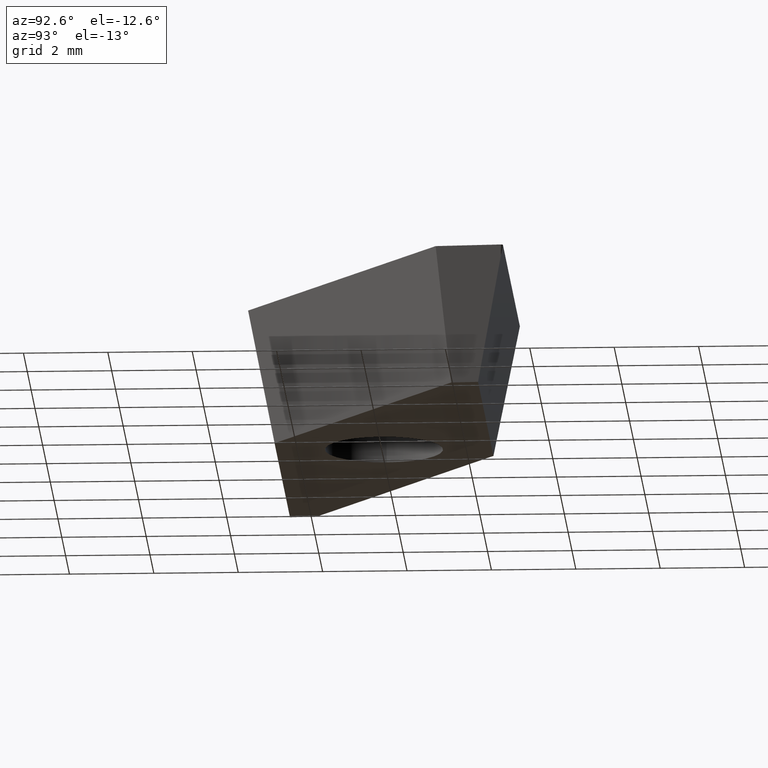
[diagram: clean part render]
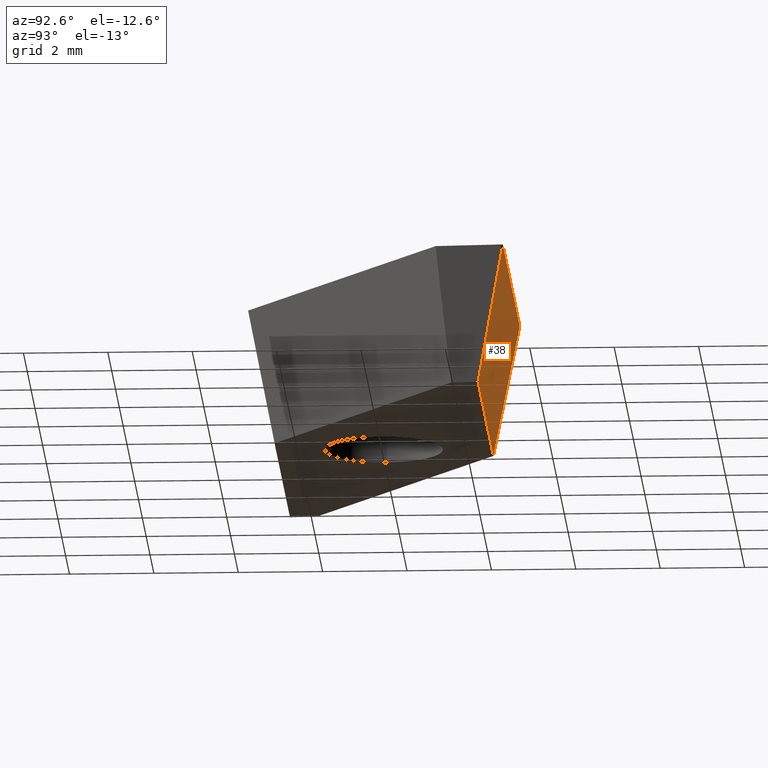
[diagram: same view with one face highlighted and labeled with its STEP entity id]
A machine part, auxiliary view. The second image highlights one B-rep face of the part: STEP entity #38.
In plain terms, the highlighted planar face has unit normal (-0, 0.9816, -0.1908).
Its self-contained STEP definition (entity closure, byte-faithful):
#3 = FACE_OUTER_BOUND ( 'NONE', #160, .T. ) ;
#20 = VECTOR ( 'NONE', #211, 1000.000000000000100 ) ;
#22 = LINE ( 'NONE', #298, #24 ) ;
#24 = VECTOR ( 'NONE', #306, 1000.000000000000100 ) ;
#37 = CARTESIAN_POINT ( 'NONE',  ( -1.001073654690764600, 3.174999999999999800, 0.0000000000000000000 ) ) ;
#38 = ADVANCED_FACE ( 'NONE', ( #3 ), #233, .T. ) ;
#86 = VERTEX_POINT ( 'NONE', #229 ) ;
#90 = VECTOR ( 'NONE', #133, 1000.000000000000000 ) ;
#92 = LINE ( 'NONE', #312, #90 ) ;
#93 = EDGE_CURVE ( 'NONE', #86, #313, #92, .T. ) ;
#101 = ORIENTED_EDGE ( 'NONE', *, *, #394, .T. ) ;
#103 = CARTESIAN_POINT ( 'NONE',  ( -0.8061782088420828000, 2.556870616942053400, -3.180000000000000200 ) ) ;
#109 = ORIENTED_EDGE ( 'NONE', *, *, #324, .T. ) ;
#133 = DIRECTION ( 'NONE',  ( -1.000000000000000000, -9.744461978823350000E-017, 0.0000000000000000000 ) ) ;
#157 = ORIENTED_EDGE ( 'NONE', *, *, #93, .T. ) ;
#160 = EDGE_LOOP ( 'NONE', ( #243, #101, #246, #157, #109 ) ) ;
#178 = CARTESIAN_POINT ( 'NONE',  ( -1.001073654690764600, 3.174999999999999800, 0.0000000000000000000 ) ) ;
#181 = LINE ( 'NONE', #178, #20 ) ;
#186 = CARTESIAN_POINT ( 'NONE',  ( -1.001073654690764600, 3.174999999999999800, 0.0000000000000000000 ) ) ;
#205 = EDGE_CURVE ( 'NONE', #86, #275, #22, .T. ) ;
#211 = DIRECTION ( 'NONE',  ( -0.06005326349153970700, 0.1904646183547176200, 0.9798555172570124800 ) ) ;
#229 = CARTESIAN_POINT ( 'NONE',  ( 7.237137390861797700, 2.556870616942054300, -3.180000000000000200 ) ) ;
#231 = VERTEX_POINT ( 'NONE', #443 ) ;
#233 = PLANE ( 'NONE',  #319 ) ;
#243 = ORIENTED_EDGE ( 'NONE', *, *, #403, .F. ) ;
#246 = ORIENTED_EDGE ( 'NONE', *, *, #205, .F. ) ;
#247 = CARTESIAN_POINT ( 'NONE',  ( 7.846381564498766900, 3.175000000000000700, 1.921625099205375900E-018 ) ) ;
#249 = CARTESIAN_POINT ( 'NONE',  ( -1.001073654690764600, 3.174999999999999800, 0.0000000000000000000 ) ) ;
#254 = DIRECTION ( 'NONE',  ( -1.000000000000000000, -9.744461978823348800E-017, -0.0000000000000000000 ) ) ;
#275 = VERTEX_POINT ( 'NONE', #406 ) ;
#283 = DIRECTION ( 'NONE',  ( 1.859331000664225100E-017, -0.1908089953765452500, -0.9816271834476638600 ) ) ;
#298 = CARTESIAN_POINT ( 'NONE',  ( 7.900000000000000400, 3.175000000000000700, 0.0000000000000000000 ) ) ;
#306 = DIRECTION ( 'NONE',  ( 0.2004640746510997800, 0.1869357738407769500, 0.9617011860410842300 ) ) ;
#312 = CARTESIAN_POINT ( 'NONE',  ( -1.001073654690764600, 2.556870616942053400, -3.180000000000000200 ) ) ;
#313 = VERTEX_POINT ( 'NONE', #103 ) ;
#319 = AXIS2_PLACEMENT_3D ( 'NONE', #37, #393, #391 ) ;
#324 = EDGE_CURVE ( 'NONE', #313, #329, #181, .T. ) ;
#329 = VERTEX_POINT ( 'NONE', #186 ) ;
#361 = VECTOR ( 'NONE', #254, 1000.000000000000000 ) ;
#372 = LINE ( 'NONE', #249, #361 ) ;
#391 = DIRECTION ( 'NONE',  ( 0.0000000000000000000, 0.1908089953765452800, 0.9816271834476639800 ) ) ;
#393 = DIRECTION ( 'NONE',  ( -9.565428766485213700E-017, 0.9816271834476639800, -0.1908089953765452800 ) ) ;
#394 = EDGE_CURVE ( 'NONE', #231, #275, #426, .T. ) ;
#402 = VECTOR ( 'NONE', #283, 1000.000000000000100 ) ;
#403 = EDGE_CURVE ( 'NONE', #231, #329, #372, .T. ) ;
#406 = CARTESIAN_POINT ( 'NONE',  ( 7.846381564498765100, 3.125000000000000400, -0.2572277007985165300 ) ) ;
#426 = LINE ( 'NONE', #247, #402 ) ;
#443 = CARTESIAN_POINT ( 'NONE',  ( 7.846381564498766900, 3.175000000000000700, 0.0000000000000000000 ) ) ;